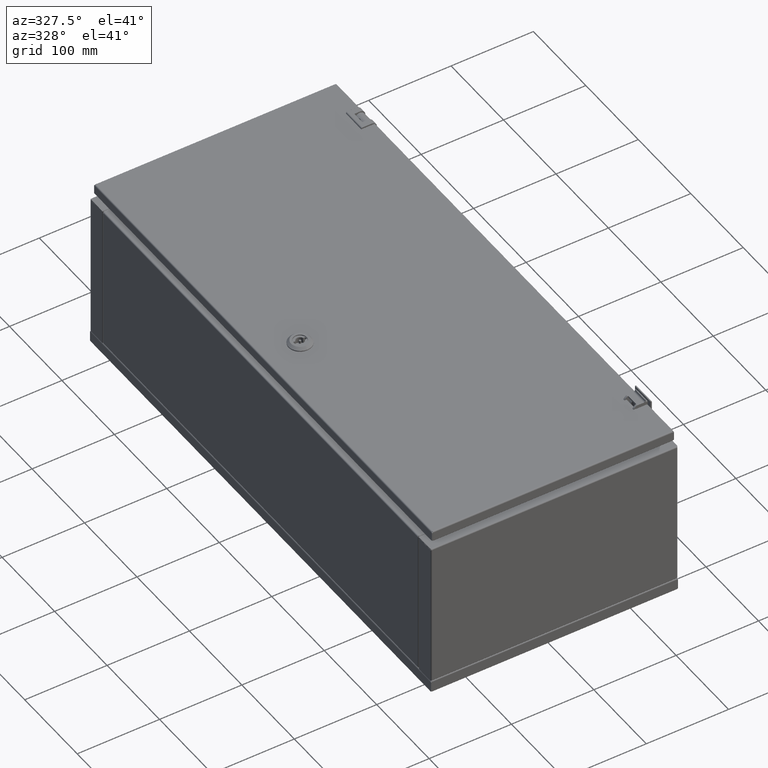
[diagram: clean part render]
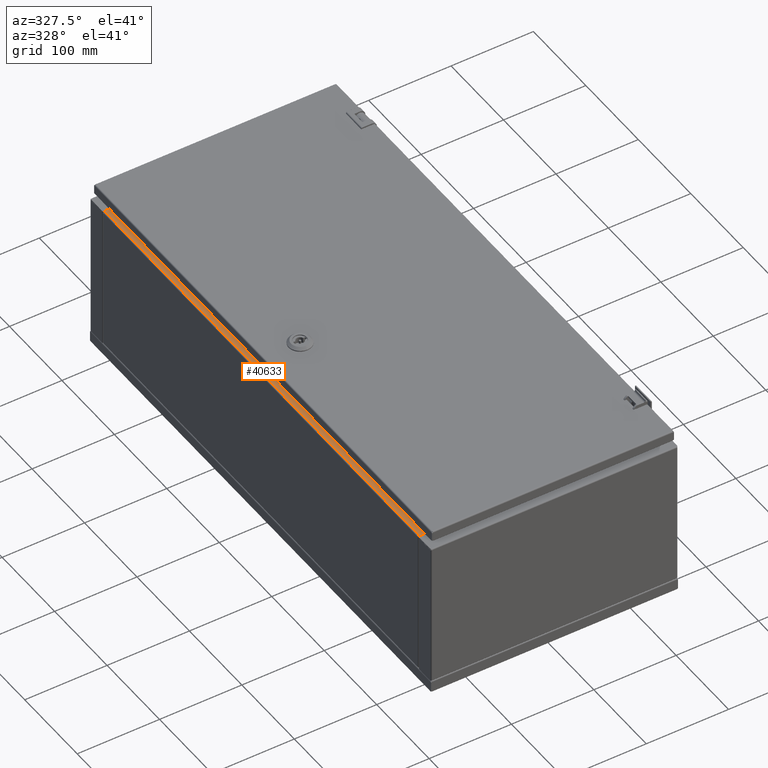
[diagram: same view with one face highlighted and labeled with its STEP entity id]
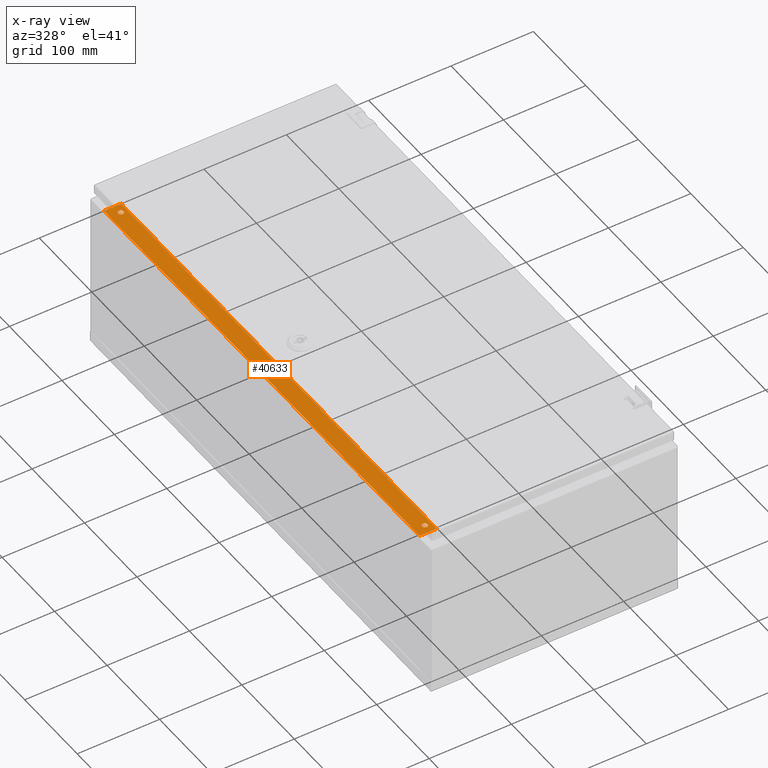
[diagram: x-ray of the same camera — body ghosted, the highlighted face saturated]
A machine part, auxiliary view. The second image highlights one B-rep face of the part: STEP entity #40633.
The next image is the same camera in x-ray: the body ghosted, the highlighted face saturated — about 0% of this face is hidden behind the body in this view.
In plain terms, the highlighted planar face has unit normal (0, -0, -1).
Its self-contained STEP definition (entity closure, byte-faithful):
#2282 = DIRECTION ( 'NONE',  ( 7.602820488374992900E-015, -4.433953204596800200E-015, -1.000000000000000000 ) ) ;
#2574 = DIRECTION ( 'NONE',  ( 1.000000000000000000, -1.402331780877600100E-014, 7.683983470719571300E-015 ) ) ;
#2869 = VERTEX_POINT ( 'NONE', #18952 ) ;
#3097 = PLANE ( 'NONE',  #48635 ) ;
#4122 = LINE ( 'NONE', #18927, #73847 ) ;
#5476 = EDGE_CURVE ( 'NONE', #12604, #64378, #73330, .T. ) ;
#5633 = ORIENTED_EDGE ( 'NONE', *, *, #42369, .F. ) ;
#5751 = CARTESIAN_POINT ( 'NONE',  ( -148.4999999999972100, 299.2500000000000000, 193.0000000000000000 ) ) ;
#6819 = DIRECTION ( 'NONE',  ( -1.065454677283894100E-014, -1.000000000000000000, 4.433953204596720500E-015 ) ) ;
#8377 = VECTOR ( 'NONE', #2574, 1000.000000000000000 ) ;
#8437 = VECTOR ( 'NONE', #6819, 1000.000000000000000 ) ;
#8913 = DIRECTION ( 'NONE',  ( -1.000000000000000000, 1.065454677283890100E-014, -7.602820488375040300E-015 ) ) ;
#11017 = CARTESIAN_POINT ( 'NONE',  ( -134.9999999999974100, 289.7500000000000000, 193.0000000000000000 ) ) ;
#11528 = FACE_BOUND ( 'NONE', #29181, .T. ) ;
#12604 = VERTEX_POINT ( 'NONE', #47161 ) ;
#13710 = CIRCLE ( 'NONE', #15458, 3.249999999999947600 ) ;
#14413 = ORIENTED_EDGE ( 'NONE', *, *, #67415, .F. ) ;
#14850 = ORIENTED_EDGE ( 'NONE', *, *, #41711, .T. ) ;
#15458 = AXIS2_PLACEMENT_3D ( 'NONE', #31100, #36897, #61821 ) ;
#17906 = DIRECTION ( 'NONE',  ( -1.000000000000000000, 1.708035422500239500E-014, -8.540177112501197500E-015 ) ) ;
#18070 = DIRECTION ( 'NONE',  ( 1.070092200360858000E-014, 1.000000000000000000, -4.433953204596720500E-015 ) ) ;
#18927 = CARTESIAN_POINT ( 'NONE',  ( -148.4999999999970200, 300.7500000000000000, 193.0000000000000000 ) ) ;
#18952 = CARTESIAN_POINT ( 'NONE',  ( -127.5999999999970200, 300.7500000000000000, 193.0000000000000000 ) ) ;
#19719 = EDGE_CURVE ( 'NONE', #22971, #2869, #4122, .T. ) ;
#19776 = CARTESIAN_POINT ( 'NONE',  ( -148.5000000000036100, -300.7500000000000000, 193.0000000000000000 ) ) ;
#21340 = VERTEX_POINT ( 'NONE', #22166 ) ;
#21732 = AXIS2_PLACEMENT_3D ( 'NONE', #11017, #41765, #29676 ) ;
#22166 = CARTESIAN_POINT ( 'NONE',  ( -127.6000000000033800, -300.7500000000000000, 193.0000000000000000 ) ) ;
#22971 = VERTEX_POINT ( 'NONE', #64393 ) ;
#27539 = AXIS2_PLACEMENT_3D ( 'NONE', #35832, #79665, #17906 ) ;
#28526 = CARTESIAN_POINT ( 'NONE',  ( -138.2499999999973600, 289.7500000000001100, 192.9999999999999700 ) ) ;
#29181 = EDGE_LOOP ( 'NONE', ( #55680, #39580 ) ) ;
#29676 = DIRECTION ( 'NONE',  ( 1.000000000000000000, -1.708035422500268500E-014, 8.540177112501342600E-015 ) ) ;
#30417 = AXIS2_PLACEMENT_3D ( 'NONE', #51040, #51570, #70992 ) ;
#31100 = CARTESIAN_POINT ( 'NONE',  ( -134.9999999999974100, 289.7500000000000000, 193.0000000000000000 ) ) ;
#31738 = EDGE_LOOP ( 'NONE', ( #47641, #69342 ) ) ;
#35832 = CARTESIAN_POINT ( 'NONE',  ( -135.0000000000033800, -289.7500000000000000, 193.0000000000000000 ) ) ;
#36031 = FACE_OUTER_BOUND ( 'NONE', #81021, .T. ) ;
#36897 = DIRECTION ( 'NONE',  ( -7.602820488375000800E-015, 4.433953204596800200E-015, 1.000000000000000000 ) ) ;
#39297 = DIRECTION ( 'NONE',  ( 1.000000000000000000, -5.698193984333740400E-015, 7.683983470719541400E-015 ) ) ;
#39580 = ORIENTED_EDGE ( 'NONE', *, *, #5476, .F. ) ;
#40633 = ADVANCED_FACE ( 'NONE', ( #11528, #45899, #36031 ), #3097, .F. ) ;
#41711 = EDGE_CURVE ( 'NONE', #42009, #21340, #55438, .T. ) ;
#41765 = DIRECTION ( 'NONE',  ( -7.602820488375000800E-015, 4.433953204596800200E-015, 1.000000000000000000 ) ) ;
#42009 = VERTEX_POINT ( 'NONE', #19776 ) ;
#42369 = EDGE_CURVE ( 'NONE', #42009, #22971, #46246, .T. ) ;
#45899 = FACE_BOUND ( 'NONE', #31738, .T. ) ;
#46043 = VERTEX_POINT ( 'NONE', #77832 ) ;
#46246 = LINE ( 'NONE', #5751, #71656 ) ;
#47026 = CARTESIAN_POINT ( 'NONE',  ( -149.0000000000041800, -300.7500000000000000, 193.0000000000000000 ) ) ;
#47161 = CARTESIAN_POINT ( 'NONE',  ( -138.2500000000034100, -289.7499999999998900, 192.9999999999999700 ) ) ;
#47641 = ORIENTED_EDGE ( 'NONE', *, *, #57699, .F. ) ;
#48635 = AXIS2_PLACEMENT_3D ( 'NONE', #47026, #2282, #8913 ) ;
#51040 = CARTESIAN_POINT ( 'NONE',  ( -135.0000000000033800, -289.7500000000000000, 193.0000000000000000 ) ) ;
#51570 = DIRECTION ( 'NONE',  ( -7.602820488375000800E-015, 4.433953204596800200E-015, 1.000000000000000000 ) ) ;
#53920 = CARTESIAN_POINT ( 'NONE',  ( -131.7500000000033800, -289.7500000000000000, 193.0000000000000300 ) ) ;
#55438 = LINE ( 'NONE', #77460, #8377 ) ;
#55680 = ORIENTED_EDGE ( 'NONE', *, *, #68852, .F. ) ;
#57699 = EDGE_CURVE ( 'NONE', #46043, #78002, #13710, .T. ) ;
#61821 = DIRECTION ( 'NONE',  ( 1.000000000000000000, -1.708035422500268500E-014, 8.540177112501342600E-015 ) ) ;
#64378 = VERTEX_POINT ( 'NONE', #53920 ) ;
#64393 = CARTESIAN_POINT ( 'NONE',  ( -148.4999999999970200, 300.7500000000000000, 193.0000000000000000 ) ) ;
#64647 = EDGE_CURVE ( 'NONE', #78002, #46043, #71589, .T. ) ;
#65413 = LINE ( 'NONE', #69322, #8437 ) ;
#66098 = CIRCLE ( 'NONE', #30417, 3.250000000000002700 ) ;
#67415 = EDGE_CURVE ( 'NONE', #2869, #21340, #65413, .T. ) ;
#67466 = ORIENTED_EDGE ( 'NONE', *, *, #19719, .F. ) ;
#68852 = EDGE_CURVE ( 'NONE', #64378, #12604, #66098, .T. ) ;
#69322 = CARTESIAN_POINT ( 'NONE',  ( -127.5999999999970200, 300.7500000000000000, 193.0000000000000000 ) ) ;
#69342 = ORIENTED_EDGE ( 'NONE', *, *, #64647, .F. ) ;
#70992 = DIRECTION ( 'NONE',  ( -1.000000000000000000, 1.708035422500239500E-014, -8.540177112501197500E-015 ) ) ;
#71589 = CIRCLE ( 'NONE', #21732, 3.249999999999947600 ) ;
#71656 = VECTOR ( 'NONE', #18070, 1000.000000000000000 ) ;
#73330 = CIRCLE ( 'NONE', #27539, 3.250000000000002700 ) ;
#73847 = VECTOR ( 'NONE', #39297, 1000.000000000000000 ) ;
#77460 = CARTESIAN_POINT ( 'NONE',  ( -148.5000000000036100, -300.7500000000000000, 193.0000000000000000 ) ) ;
#77832 = CARTESIAN_POINT ( 'NONE',  ( -131.7499999999974400, 289.7499999999999400, 193.0000000000000300 ) ) ;
#78002 = VERTEX_POINT ( 'NONE', #28526 ) ;
#79665 = DIRECTION ( 'NONE',  ( -7.602820488375000800E-015, 4.433953204596800200E-015, 1.000000000000000000 ) ) ;
#81021 = EDGE_LOOP ( 'NONE', ( #14413, #67466, #5633, #14850 ) ) ;